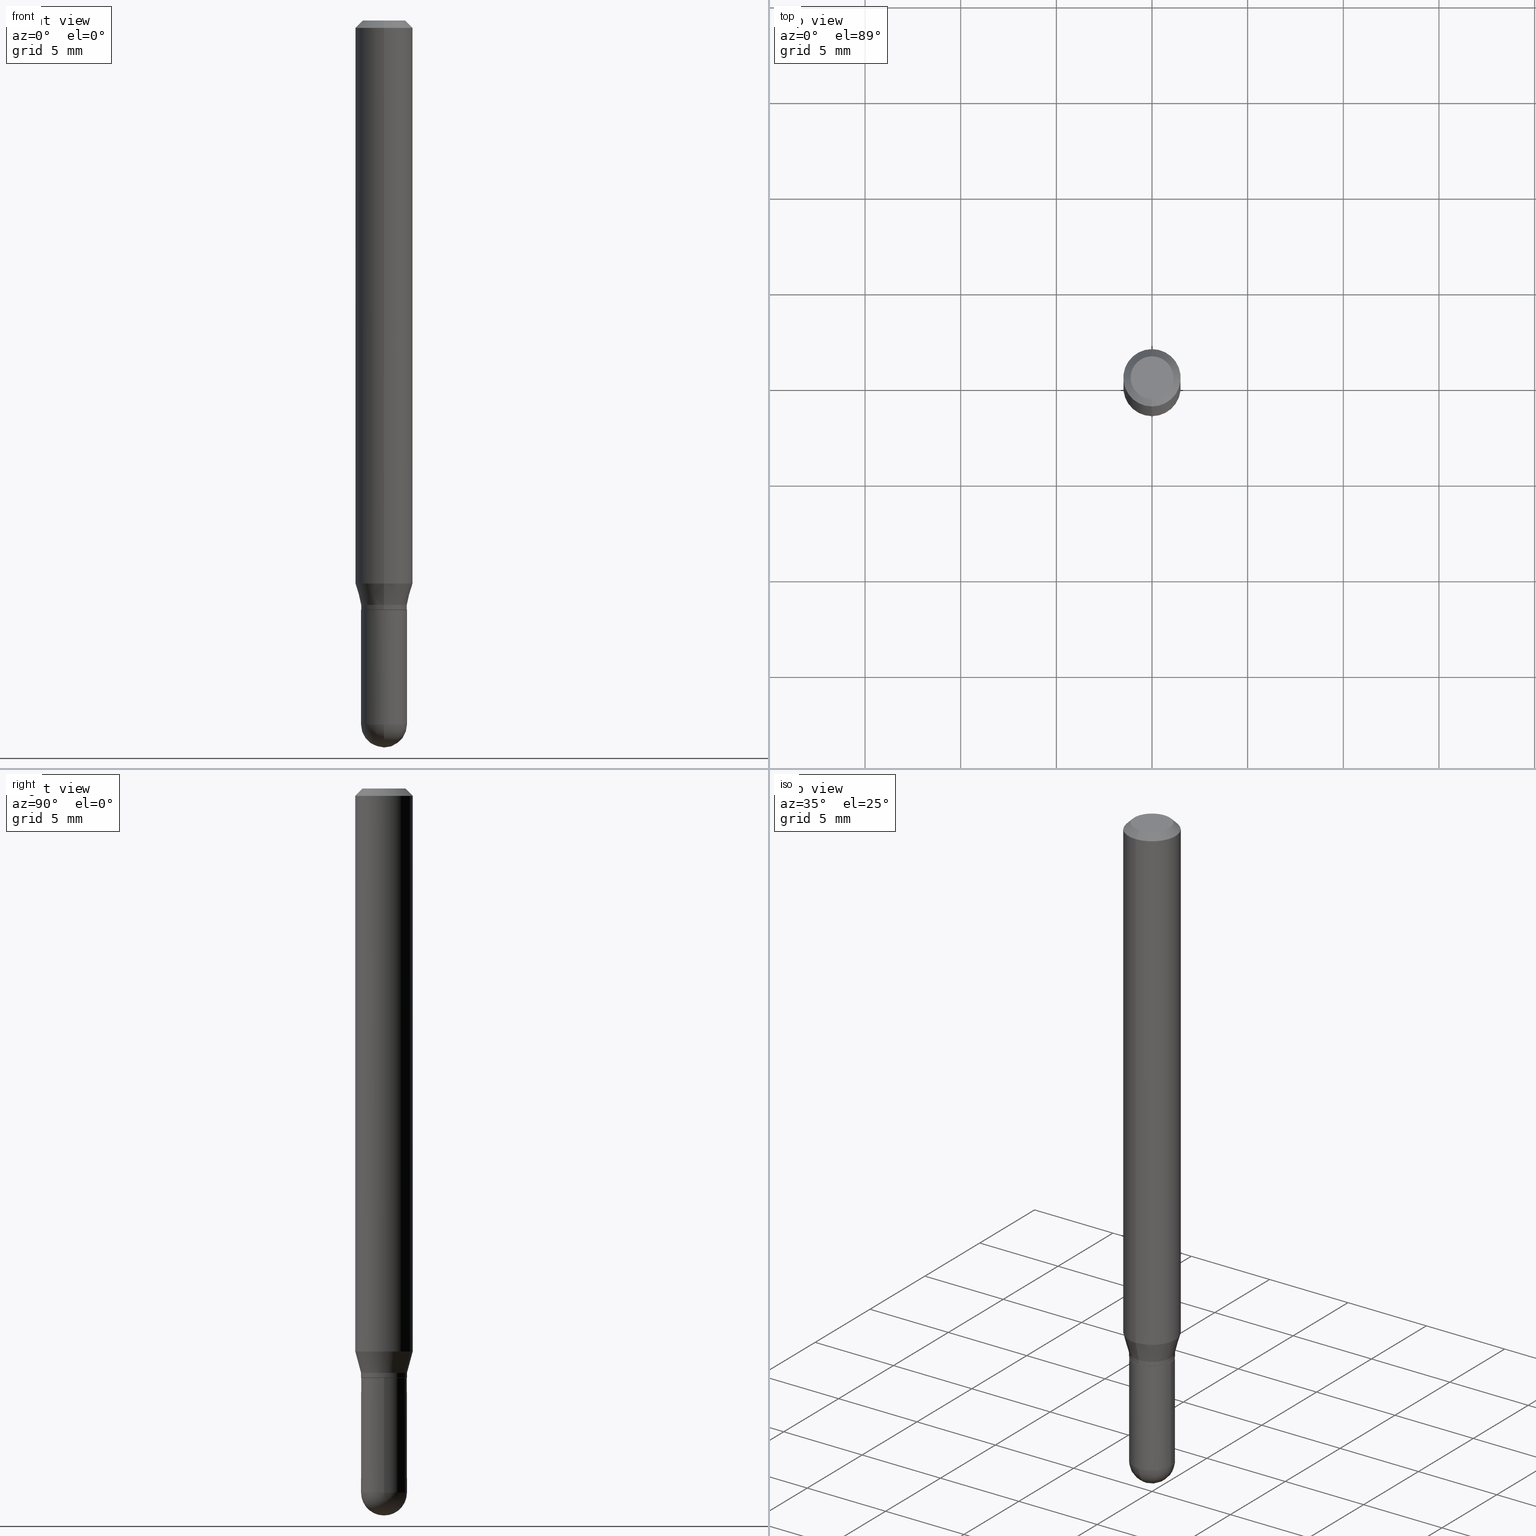
[diagram: canonical four-view strip — front | top / right | iso, engineering-drawing reading convention]
A machine part, canonical four-view strip (front | top / right | iso — engineering-drawing reading convention). The complete STEP part file that produces these views, byte-faithful:
ISO-10303-21;
HEADER;
FILE_DESCRIPTION (( 'STEP AP203' ),
    '1' );
FILE_NAME ('02973.STEP',
    '2024-03-07T22:13:24',
    ( '' ),
    ( '' ),
    'SwSTEP 2.0',
    'SolidWorks 2023',
    '' );
FILE_SCHEMA (( 'CONFIG_CONTROL_DESIGN' ));
ENDSEC;

DATA;
#1 = FACE_OUTER_BOUND ( 'NONE', #512, .T. ) ;
#2 = AXIS2_PLACEMENT_3D ( 'NONE', #131, #375, #56 ) ;
#3 = SECURITY_CLASSIFICATION ( '', '', #100 ) ;
#4 = EDGE_LOOP ( 'NONE', ( #207, #232, #391, #118 ) ) ;
#5 = EDGE_LOOP ( 'NONE', ( #82, #492, #133, #284 ) ) ;
#6 = CARTESIAN_POINT ( 'NONE',  ( -3.299449865206764511E-16, -0.04725000000000005584, 1.649753630756329783E-16 ) ) ;
#7 = CARTESIAN_POINT ( 'NONE',  ( 2.940869781282851862E-29, -4.198928500206475713E-15, -1.202599999999999891 ) ) ;
#8 = CARTESIAN_POINT ( 'NONE',  ( 3.543117479841335070E-29, -5.058632737782891656E-15, -1.448849999999999971 ) ) ;
#9 = DIRECTION ( 'NONE',  ( -2.445426393882298514E-29, 3.491542075674767907E-15, 1.000000000000000000 ) ) ;
#10 = DIRECTION ( 'NONE',  ( -2.445426393882298514E-29, 3.491542075674767907E-15, 1.000000000000000000 ) ) ;
#11 = FACE_OUTER_BOUND ( 'NONE', #173, .T. ) ;
#12 = AXIS2_PLACEMENT_3D ( 'NONE', #488, #248, #29 ) ;
#13 = AXIS2_PLACEMENT_3D ( 'NONE', #255, #416, #14 ) ;
#14 = DIRECTION ( 'NONE',  ( -6.982962677686266711E-15, -1.000000000000000000, 2.921762560068730989E-15 ) ) ;
#15 = ORIENTED_EDGE ( 'NONE', *, *, #374, .F. ) ;
#16 = CC_DESIGN_PERSON_AND_ORGANIZATION_ASSIGNMENT ( #500, #345, ( #24 ) ) ;
#17 = EDGE_CURVE ( 'NONE', #241, #247, #144, .T. ) ;
#18 = LENGTH_MEASURE_WITH_UNIT ( LENGTH_MEASURE( 0.02539999999999999897 ), #258 );
#19 = VERTEX_POINT ( 'NONE', #501 ) ;
#20 = CARTESIAN_POINT ( 'NONE',  ( 3.357314426466771690E-16, 0.04724999999999579536, -1.212099999999999955 ) ) ;
#21 = DIRECTION ( 'NONE',  ( -6.982962677686266711E-15, -1.000000000000000000, 5.781688875479930044E-15 ) ) ;
#22 = DIRECTION ( 'NONE',  ( -6.982962677686265922E-15, -1.000000000000000000, 3.491542075674767907E-15 ) ) ;
#23 = CIRCLE ( 'NONE', #506, 0.04404999999999999888 ) ;
#24 = PRODUCT_DEFINITION_FORMATION_WITH_SPECIFIED_SOURCE ( 'ANY', '', #165, .NOT_KNOWN. ) ;
#25 = CALENDAR_DATE ( 2024, 7, 3 ) ;
#26 = APPROVAL_DATE_TIME ( #304, #200 ) ;
#27 = ORIENTED_EDGE ( 'NONE', *, *, #196, .F. ) ;
#28 = CARTESIAN_POINT ( 'NONE',  ( 2.833177605814816812E-29, -4.045167273612921332E-15, -1.158561800470687464 ) ) ;
#29 = DIRECTION ( 'NONE',  ( 1.000000000000000000, -6.982962677686266711E-15, 4.876176775795935793E-29 ) ) ;
#30 = APPROVAL_DATE_TIME ( #142, #394 ) ;
#31 = CIRCLE ( 'NONE', #208, 0.04724999999999998646 ) ;
#32 = CARTESIAN_POINT ( 'NONE',  ( 2.241530102612863400E-45, -3.200422096834981095E-31, -9.166213745874662169E-17 ) ) ;
#33 = EDGE_CURVE ( 'NONE', #278, #147, #214, .T. ) ;
#34 = LINE ( 'NONE', #198, #58 ) ;
#35 = AXIS2_PLACEMENT_3D ( 'NONE', #8, #171, #333 ) ;
#36 = CARTESIAN_POINT ( 'NONE',  ( 4.195754854663390985E-16, 0.05904999999999999832, -2.061755595685950355E-16 ) ) ;
#37 = COORDINATED_UNIVERSAL_TIME_OFFSET ( 5, 0, .BEHIND. ) ;
#38 = ORIENTED_EDGE ( 'NONE', *, *, #253, .F. ) ;
#39 = CARTESIAN_POINT ( 'NONE',  ( -3.299449865206470168E-16, -0.04725000000000431633, -1.212099999999999733 ) ) ;
#40 = DIRECTION ( 'NONE',  ( -2.445426393882298514E-29, 3.491542075674767907E-15, 1.000000000000000000 ) ) ;
#41 = VERTEX_POINT ( 'NONE', #274 ) ;
#42 = DIRECTION ( 'NONE',  ( -2.445426393882298514E-29, 3.491542075674767907E-15, 1.000000000000000000 ) ) ;
#43 = ORIENTED_EDGE ( 'NONE', *, *, #510, .T. ) ;
#44 = CIRCLE ( 'NONE', #227, 0.05904999999999999832 ) ;
#45 = FACE_OUTER_BOUND ( 'NONE', #243, .T. ) ;
#46 = EDGE_LOOP ( 'NONE', ( #270, #300 ) ) ;
#47 = ORIENTED_EDGE ( 'NONE', *, *, #314, .F. ) ;
#48 = DIRECTION ( 'NONE',  ( -2.445426393882298514E-29, 3.491542075674767907E-15, 1.000000000000000000 ) ) ;
#49 = DIRECTION ( 'NONE',  ( -6.982962677686265922E-15, -1.000000000000000000, 2.890844437739957528E-15 ) ) ;
#50 = CARTESIAN_POINT ( 'NONE',  ( 4.123439461173743285E-16, 0.05904999999999994975, -0.01500000000000029955 ) ) ;
#51 = FACE_OUTER_BOUND ( 'NONE', #312, .T. ) ;
#52 = CYLINDRICAL_SURFACE ( 'NONE', #187, 0.05904999999999999832 ) ;
#53 = EDGE_CURVE ( 'NONE', #41, #19, #55, .T. ) ;
#54 = FACE_OUTER_BOUND ( 'NONE', #282, .T. ) ;
#55 = CIRCLE ( 'NONE', #411, 0.04725000000000005584 ) ;
#56 = DIRECTION ( 'NONE',  ( -6.982962677686265922E-15, -1.000000000000000000, 2.890844437739957528E-15 ) ) ;
#57 = DIRECTION ( 'NONE',  ( -4.937700262164674260E-15, -0.7071067811865632269, 0.7071067811865319186 ) ) ;
#58 = VECTOR ( 'NONE', #112, 39.37007874015748143 ) ;
#59 = VECTOR ( 'NONE', #79, 39.37007874015748143 ) ;
#60 = DATE_TIME_ROLE ( 'classification_date' ) ;
#61 = EDGE_CURVE ( 'NONE', #406, #278, #93, .T. ) ;
#62 = PERSON_AND_ORGANIZATION_ROLE ( 'design_owner' ) ;
#63 = PRODUCT_DEFINITION_SHAPE ( 'NONE', 'NONE',  #240 ) ;
#64 = ORIENTED_EDGE ( 'NONE', *, *, #53, .F. ) ;
#65 = DIRECTION ( 'NONE',  ( -2.445468806185136597E-29, 3.491481338843145583E-15, 1.000000000000000000 ) ) ;
#66 = CC_DESIGN_PERSON_AND_ORGANIZATION_ASSIGNMENT ( #423, #504, ( #3 ) ) ;
#67 = EDGE_CURVE ( 'NONE', #78, #137, #436, .T. ) ;
#68 = CONICAL_SURFACE ( 'NONE', #472, 0.04674999999999999295, 0.7853981633974739252 ) ;
#69 = DIRECTION ( 'NONE',  ( 6.982962677686265922E-15, 1.000000000000000000, -3.505890868245046092E-15 ) ) ;
#70 = CARTESIAN_POINT ( 'NONE',  ( 3.668139590823469947E-31, -5.237313113512184524E-17, -0.01500000000000009139 ) ) ;
#71 = VERTEX_POINT ( 'NONE', #188 ) ;
#72 = ADVANCED_FACE ( 'NONE', ( #257 ), #52, .T. ) ;
#73 = CLOSED_SHELL ( 'NONE', ( #109, #103, #427, #468, #265 ) ) ;
#74 = ADVANCED_FACE ( 'NONE', ( #11 ), #68, .T. ) ;
#75 = DIRECTION ( 'NONE',  ( -2.445426393882298514E-29, 3.491542075674767907E-15, 1.000000000000000000 ) ) ;
#76 = AXIS2_PLACEMENT_3D ( 'NONE', #141, #428, #69 ) ;
#77 = AXIS2_PLACEMENT_3D ( 'NONE', #128, #294, #369 ) ;
#78 = VERTEX_POINT ( 'NONE', #20 ) ;
#79 = DIRECTION ( 'NONE',  ( -2.445426393882298514E-29, 3.491542075674767907E-15, 1.000000000000000000 ) ) ;
#80 = CARTESIAN_POINT ( 'NONE',  ( 0.000000000000000000, 0.000000000000000000, 0.000000000000000000 ) ) ;
#81 = CARTESIAN_POINT ( 'NONE',  ( 3.539076819124962473E-29, -5.064419193908863088E-15, -1.448849999999999971 ) ) ;
#82 = ORIENTED_EDGE ( 'NONE', *, *, #320, .T. ) ;
#83 = EDGE_CURVE ( 'NONE', #252, #71, #401, .T. ) ;
#84 = EDGE_CURVE ( 'NONE', #370, #247, #317, .T. ) ;
#85 = CARTESIAN_POINT ( 'NONE',  ( -4.123439461173456337E-16, -0.05905000000000405758, -1.158561800470687464 ) ) ;
#86 = SPHERICAL_SURFACE ( 'NONE', #97, 0.04724999999999993788 ) ;
#87 = VECTOR ( 'NONE', #456, 39.37007874015748143 ) ;
#88 = ORIENTED_EDGE ( 'NONE', *, *, #442, .T. ) ;
#89 = CYLINDRICAL_SURFACE ( 'NONE', #496, 0.04725000000000005584 ) ;
#90 = PLANE ( 'NONE',  #113 ) ;
#91 = CARTESIAN_POINT ( 'NONE',  ( 3.543117479841335070E-29, -5.058632737782891656E-15, -1.448849999999999971 ) ) ;
#92 = EDGE_CURVE ( 'NONE', #370, #252, #454, .T. ) ;
#93 = LINE ( 'NONE', #222, #267 ) ;
#94 = DIRECTION ( 'NONE',  ( 1.000000000000000000, 0.000000000000000000, 0.000000000000000000 ) ) ;
#95 = DIRECTION ( 'NONE',  ( -2.445426393882298514E-29, 3.491542075674767907E-15, 1.000000000000000000 ) ) ;
#96 = AXIS2_PLACEMENT_3D ( 'NONE', #98, #262, #21 ) ;
#97 = AXIS2_PLACEMENT_3D ( 'NONE', #81, #117, #245 ) ;
#98 = CARTESIAN_POINT ( 'NONE',  ( 3.539076819124962473E-29, -5.064419193908863088E-15, -1.448849999999999971 ) ) ;
#99 = ORIENTED_EDGE ( 'NONE', *, *, #314, .T. ) ;
#100 = SECURITY_CLASSIFICATION_LEVEL ( 'unclassified' ) ;
#101 = CARTESIAN_POINT ( 'NONE',  ( 2.940869781282851862E-29, -4.198928500206475713E-15, -1.202599999999999891 ) ) ;
#102 = CARTESIAN_POINT ( 'NONE',  ( -3.299449865206404101E-16, -0.04725000000000502409, -1.448849999999999749 ) ) ;
#103 = ADVANCED_FACE ( 'NONE', ( #251 ), #379, .T. ) ;
#104 = COORDINATED_UNIVERSAL_TIME_OFFSET ( 5, 0, .BEHIND. ) ;
#105 = ORIENTED_EDGE ( 'NONE', *, *, #172, .F. ) ;
#106 = CIRCLE ( 'NONE', #293, 0.04724999999999998646 ) ;
#107 = APPLICATION_PROTOCOL_DEFINITION ( 'international standard', 'config_control_design', 1994, #398 ) ;
#108 = DIRECTION ( 'NONE',  ( -6.982962677686265922E-15, -1.000000000000000000, 4.626330217890369336E-15 ) ) ;
#109 = ADVANCED_FACE ( 'NONE', ( #184 ), #286, .T. ) ;
#110 = DIRECTION ( 'NONE',  ( -2.445426393882298514E-29, 3.491542075674767907E-15, 1.000000000000000000 ) ) ;
#111 = ADVANCED_FACE ( 'NONE', ( #463 ), #469, .T. ) ;
#112 = DIRECTION ( 'NONE',  ( 5.024295867788190974E-15, 0.7071067811865681119, 0.7071067811865270336 ) ) ;
#113 = AXIS2_PLACEMENT_3D ( 'NONE', #337, #168, #283 ) ;
#114 = CARTESIAN_POINT ( 'NONE',  ( -3.264535051818032208E-16, -0.04675000000000423261, -1.212599999999999900 ) ) ;
#115 = VECTOR ( 'NONE', #446, 39.37007874015748143 ) ;
#116 = ORGANIZATION ( 'UNSPECIFIED', 'UNSPECIFIED', '' ) ;
#117 = DIRECTION ( 'NONE',  ( 1.000000000000000000, -6.982962677686266711E-15, 4.883557194083112901E-29 ) ) ;
#118 = ORIENTED_EDGE ( 'NONE', *, *, #289, .F. ) ;
#119 = CC_DESIGN_PERSON_AND_ORGANIZATION_ASSIGNMENT ( #269, #62, ( #165 ) ) ;
#120 = DIRECTION ( 'NONE',  ( -6.982962677686266711E-15, -1.000000000000000000, 2.921762560068730989E-15 ) ) ;
#121 = ORIENTED_EDGE ( 'NONE', *, *, #17, .F. ) ;
#122 = EDGE_CURVE ( 'NONE', #160, #137, #355, .T. ) ;
#123 = CARTESIAN_POINT ( 'NONE',  ( 3.357314426466476853E-16, 0.04725000000000005584, -1.649753630756329783E-16 ) ) ;
#124 = DIRECTION ( 'NONE',  ( -2.445468806185136597E-29, 3.491481338843145583E-15, 1.000000000000000000 ) ) ;
#125 = DIRECTION ( 'NONE',  ( 1.000000000000000000, -7.105427357601001070E-15, 4.926315508542082329E-29 ) ) ;
#126 = LINE ( 'NONE', #50, #139 ) ;
#127 = DIRECTION ( 'NONE',  ( 2.445426393882298514E-29, -3.491542075674767907E-15, -1.000000000000000000 ) ) ;
#128 = CARTESIAN_POINT ( 'NONE',  ( 0.000000000000000000, 0.000000000000000000, 0.000000000000000000 ) ) ;
#129 = CIRCLE ( 'NONE', #161, 0.04674999999999999295 ) ;
#130 = APPROVAL_PERSON_ORGANIZATION ( #393, #394, #350 ) ;
#131 = CARTESIAN_POINT ( 'NONE',  ( 2.964101332024733501E-29, -4.232098149925386200E-15, -1.212099999999999955 ) ) ;
#132 = ADVANCED_FACE ( 'NONE', ( #499 ), #230, .F. ) ;
#133 = ORIENTED_EDGE ( 'NONE', *, *, #33, .F. ) ;
#134 = FACE_OUTER_BOUND ( 'NONE', #158, .T. ) ;
#135 = DIRECTION ( 'NONE',  ( -2.445426393882298514E-29, 3.491542075674767907E-15, 1.000000000000000000 ) ) ;
#136 = DIRECTION ( 'NONE',  ( 1.000000000000000000, -6.982962677686256455E-15, 0.000000000000000000 ) ) ;
#137 = VERTEX_POINT ( 'NONE', #39 ) ;
#138 = PERSON_AND_ORGANIZATION_ROLE ( 'creator' ) ;
#139 = VECTOR ( 'NONE', #290, 39.37007874015748143 ) ;
#140 = ORIENTED_EDGE ( 'NONE', *, *, #122, .F. ) ;
#141 = CARTESIAN_POINT ( 'NONE',  ( 3.668139590823469947E-31, -5.237313113512184524E-17, -0.01500000000000009139 ) ) ;
#142 = DATE_AND_TIME ( #193, #426 ) ;
#143 = APPROVAL ( #390, 'UNSPECIFIED' ) ;
#144 = CIRCLE ( 'NONE', #432, 0.04724999999999993788 ) ;
#145 = APPROVAL_STATUS ( 'not_yet_approved' ) ;
#146 = COORDINATED_UNIVERSAL_TIME_OFFSET ( 5, 0, .BEHIND. ) ;
#147 = VERTEX_POINT ( 'NONE', #249 ) ;
#148 = AXIS2_PLACEMENT_3D ( 'NONE', #192, #351, #311 ) ;
#149 = LOCAL_TIME ( 17, 13, 24.00000000000000000, #146 ) ;
#150 = EDGE_CURVE ( 'NONE', #205, #71, #483, .T. ) ;
#151 = DIRECTION ( 'NONE',  ( -6.982962677686265922E-15, -1.000000000000000000, 2.890844437739957528E-15 ) ) ;
#152 = ORIENTED_EDGE ( 'NONE', *, *, #451, .T. ) ;
#153 = VECTOR ( 'NONE', #210, 39.37007874015748143 ) ;
#154 = CIRCLE ( 'NONE', #162, 0.04724999999999993788 ) ;
#155 = CARTESIAN_POINT ( 'NONE',  ( 3.357314426466824445E-16, 0.04724999999999490025, -1.448850000000000415 ) ) ;
#156 = ADVANCED_FACE ( 'NONE', ( #368 ), #176, .T. ) ;
#157 = CARTESIAN_POINT ( 'NONE',  ( 3.599717260347271507E-16, 0.04404999999999999888, -2.454645658922201879E-16 ) ) ;
#158 = EDGE_LOOP ( 'NONE', ( #105, #216, #43, #364 ) ) ;
#159 = CC_DESIGN_PERSON_AND_ORGANIZATION_ASSIGNMENT ( #306, #263, ( #24 ) ) ;
#160 = VERTEX_POINT ( 'NONE', #114 ) ;
#161 = AXIS2_PLACEMENT_3D ( 'NONE', #264, #342, #437 ) ;
#162 = AXIS2_PLACEMENT_3D ( 'NONE', #444, #219, #414 ) ;
#163 = DIRECTION ( 'NONE',  ( -6.982962677686265922E-15, -1.000000000000000000, 3.491542075674767907E-15 ) ) ;
#164 = ORIENTED_EDGE ( 'NONE', *, *, #442, .F. ) ;
#165 = PRODUCT ( '02973', '02973', '', ( #302 ) ) ;
#166 = ORIENTED_EDGE ( 'NONE', *, *, #338, .T. ) ;
#167 = EDGE_LOOP ( 'NONE', ( #179, #38, #99, #166 ) ) ;
#168 = DIRECTION ( 'NONE',  ( 2.438088387897960049E-29, -3.491481338843145188E-15, -1.000000000000000000 ) ) ;
#169 = ORIENTED_EDGE ( 'NONE', *, *, #83, .F. ) ;
#170 = EDGE_LOOP ( 'NONE', ( #329, #281, #343, #64 ) ) ;
#171 = DIRECTION ( 'NONE',  ( -2.445468806185136597E-29, 3.491481338843145583E-15, 1.000000000000000000 ) ) ;
#172 = EDGE_CURVE ( 'NONE', #448, #147, #326, .T. ) ;
#173 = EDGE_LOOP ( 'NONE', ( #477, #471, #285, #140 ) ) ;
#174 = DIRECTION ( 'NONE',  ( -2.445468806185136597E-29, 3.491481338843145583E-15, 1.000000000000000000 ) ) ;
#175 = LINE ( 'NONE', #407, #507 ) ;
#176 = CONICAL_SURFACE ( 'NONE', #309, 0.05904999999999999832, 0.7853981633974483900 ) ;
#177 = DIRECTION ( 'NONE',  ( -6.982962677686265922E-15, -1.000000000000000000, 2.890844437739957528E-15 ) ) ;
#178 = FACE_OUTER_BOUND ( 'NONE', #170, .T. ) ;
#179 = ORIENTED_EDGE ( 'NONE', *, *, #61, .F. ) ;
#180 = EDGE_LOOP ( 'NONE', ( #152, #408, #15, #466 ) ) ;
#181 = DIRECTION ( 'NONE',  ( -6.982962677686265133E-15, -1.000000000000000000, 3.491542075674767907E-15 ) ) ;
#182 = ORIENTED_EDGE ( 'NONE', *, *, #186, .F. ) ;
#183 = EDGE_CURVE ( 'NONE', #406, #291, #23, .T. ) ;
#184 = FACE_OUTER_BOUND ( 'NONE', #461, .T. ) ;
#185 = APPLICATION_PROTOCOL_DEFINITION ( 'international standard', 'config_control_design', 1994, #299 ) ;
#186 = EDGE_CURVE ( 'NONE', #205, #288, #449, .T. ) ;
#187 = AXIS2_PLACEMENT_3D ( 'NONE', #261, #348, #383 ) ;
#188 = CARTESIAN_POINT ( 'NONE',  ( -0.04724999999999999339, -4.310470061985398025E-15, -1.212599999999999900 ) ) ;
#189 = DATE_AND_TIME ( #25, #229 ) ;
#190 = APPROVAL_STATUS ( 'not_yet_approved' ) ;
#191 = ORIENTED_EDGE ( 'NONE', *, *, #84, .F. ) ;
#192 = CARTESIAN_POINT ( 'NONE',  ( 3.075995059520799729E-16, 0.04404999999999999888, -1.996334971628468278E-16 ) ) ;
#193 = CALENDAR_DATE ( 2024, 7, 3 ) ;
#194 = UNCERTAINTY_MEASURE_WITH_UNIT (LENGTH_MEASURE( 1.000000000000000082E-05 ), #233, 'distance_accuracy_value', 'NONE');
#195 = CIRCLE ( 'NONE', #303, 0.05904999999999999832 ) ;
#196 = EDGE_CURVE ( 'NONE', #71, #252, #279, .T. ) ;
#197 = CIRCLE ( 'NONE', #335, 0.04404999999999999888 ) ;
#198 = CARTESIAN_POINT ( 'NONE',  ( 3.321787289678764184E-16, 0.04674999999999576022, -1.212600000000000122 ) ) ;
#199 = DIRECTION ( 'NONE',  ( -6.982962677686265133E-15, -1.000000000000000000, 3.491542075674767907E-15 ) ) ;
#200 = APPROVAL ( #190, 'UNSPECIFIED' ) ;
#201 = EDGE_CURVE ( 'NONE', #441, #78, #34, .T. ) ;
#202 = ORIENTED_EDGE ( 'NONE', *, *, #354, .F. ) ;
#203 = ORIENTED_EDGE ( 'NONE', *, *, #358, .T. ) ;
#204 = DIRECTION ( 'NONE',  ( -2.445426393882298514E-29, 3.491542075674767907E-15, 1.000000000000000000 ) ) ;
#205 = VERTEX_POINT ( 'NONE', #360 ) ;
#206 = DIRECTION ( 'NONE',  ( -2.445468806185136597E-29, 3.491481338843145583E-15, 1.000000000000000000 ) ) ;
#207 = ORIENTED_EDGE ( 'NONE', *, *, #223, .F. ) ;
#208 = AXIS2_PLACEMENT_3D ( 'NONE', #91, #327, #484 ) ;
#209 = DIRECTION ( 'NONE',  ( 1.000000000000000000, -6.982962677686266711E-15, 4.876176775795935793E-29 ) ) ;
#210 = DIRECTION ( 'NONE',  ( -2.445468806185136877E-29, 3.491481338843145188E-15, 1.000000000000000000 ) ) ;
#211 = CARTESIAN_POINT ( 'NONE',  ( 2.965324045221675082E-29, -4.233843920963223096E-15, -1.212599999999999900 ) ) ;
#212 = EDGE_LOOP ( 'NONE', ( #164, #361, #191, #384 ) ) ;
#213 = FACE_OUTER_BOUND ( 'NONE', #180, .T. ) ;
#214 = CIRCLE ( 'NONE', #225, 0.05904999999999999832 ) ;
#215 = DIRECTION ( 'NONE',  ( -6.982962677686265922E-15, -1.000000000000000000, 3.491542075674767907E-15 ) ) ;
#216 = ORIENTED_EDGE ( 'NONE', *, *, #289, .T. ) ;
#217 = FACE_OUTER_BOUND ( 'NONE', #367, .T. ) ;
#218 = CARTESIAN_POINT ( 'NONE',  ( 2.940869781282851862E-29, -4.198928500206475713E-15, -1.202599999999999891 ) ) ;
#219 = DIRECTION ( 'NONE',  ( -1.000000000000000000, 6.982962677686265922E-15, -4.883557194083112340E-29 ) ) ;
#220 = CARTESIAN_POINT ( 'NONE',  ( 2.833177605814816812E-29, -4.045167273612921332E-15, -1.158561800470687464 ) ) ;
#221 = PERSON_AND_ORGANIZATION ( #318, #116 ) ;
#222 = CARTESIAN_POINT ( 'NONE',  ( -4.051124067684085231E-16, -0.05905000000000005383, -0.01499999999999988495 ) ) ;
#223 = EDGE_CURVE ( 'NONE', #41, #448, #271, .T. ) ;
#224 = COORDINATED_UNIVERSAL_TIME_OFFSET ( 5, 0, .BEHIND. ) ;
#225 = AXIS2_PLACEMENT_3D ( 'NONE', #70, #505, #319 ) ;
#226 = ORIENTED_EDGE ( 'NONE', *, *, #183, .F. ) ;
#227 = AXIS2_PLACEMENT_3D ( 'NONE', #28, #234, #108 ) ;
#228 = DIRECTION ( 'NONE',  ( 7.105427357601001070E-15, 1.000000000000000000, 0.000000000000000000 ) ) ;
#229 = LOCAL_TIME ( 17, 13, 24.00000000000000000, #104 ) ;
#230 = PLANE ( 'NONE',  #148 ) ;
#231 = DIRECTION ( 'NONE',  ( 0.000000000000000000, 0.000000000000000000, 1.000000000000000000 ) ) ;
#232 = ORIENTED_EDGE ( 'NONE', *, *, #53, .T. ) ;
#233 =( CONVERSION_BASED_UNIT ( 'INCH', #18 ) LENGTH_UNIT ( ) NAMED_UNIT ( #301 ) );
#234 = DIRECTION ( 'NONE',  ( -2.445426393882298514E-29, 3.491542075674767907E-15, 1.000000000000000000 ) ) ;
#235 = AXIS2_PLACEMENT_3D ( 'NONE', #380, #40, #163 ) ;
#236 = AXIS2_PLACEMENT_3D ( 'NONE', #497, #231, #94 ) ;
#237 = CARTESIAN_POINT ( 'NONE',  ( 3.357314426466771197E-16, 0.04724999999999585781, -1.202600000000000113 ) ) ;
#238 = AXIS2_PLACEMENT_3D ( 'NONE', #80, #174, #209 ) ;
#239 = AXIS2_PLACEMENT_3D ( 'NONE', #211, #295, #120 ) ;
#240 = PRODUCT_DEFINITION ( 'UNKNOWN', '', #24, #340 ) ;
#241 = VERTEX_POINT ( 'NONE', #509 ) ;
#242 = DIRECTION ( 'NONE',  ( -2.445426393882298234E-29, 3.491542075674767907E-15, 1.000000000000000000 ) ) ;
#243 = EDGE_LOOP ( 'NONE', ( #431, #321, #275, #202 ) ) ;
#244 = CARTESIAN_POINT ( 'NONE',  ( -0.04724999999999998646, 3.357314426466472416E-16, -2.324196830145442465E-30 ) ) ;
#245 = DIRECTION ( 'NONE',  ( -6.982962677686266711E-15, -1.000000000000000000, 5.781688875479930044E-15 ) ) ;
#246 = APPROVAL_DATE_TIME ( #397, #143 ) ;
#247 = VERTEX_POINT ( 'NONE', #155 ) ;
#248 = DIRECTION ( 'NONE',  ( -2.445468806185136597E-29, 3.491481338843145583E-15, 1.000000000000000000 ) ) ;
#249 = CARTESIAN_POINT ( 'NONE',  ( 4.195754854663675961E-16, 0.05904999999999994281, -0.01500000000000029955 ) ) ;
#250 = CARTESIAN_POINT ( 'NONE',  ( 2.965324045221675082E-29, -4.233843920963223096E-15, -1.212599999999999900 ) ) ;
#251 = FACE_OUTER_BOUND ( 'NONE', #212, .T. ) ;
#252 = VERTEX_POINT ( 'NONE', #473 ) ;
#253 = EDGE_CURVE ( 'NONE', #291, #406, #197, .T. ) ;
#254 = CARTESIAN_POINT ( 'NONE',  ( 0.000000000000000000, 0.000000000000000000, 0.000000000000000000 ) ) ;
#255 = CARTESIAN_POINT ( 'NONE',  ( 2.965324045221675082E-29, -4.233843920963223096E-15, -1.212599999999999900 ) ) ;
#256 = CARTESIAN_POINT ( 'NONE',  ( 0.04724999999999998646, -4.976146491152720682E-15, -1.448849999999999971 ) ) ;
#257 = FACE_OUTER_BOUND ( 'NONE', #5, .T. ) ;
#258 =( LENGTH_UNIT ( ) NAMED_UNIT ( * ) SI_UNIT ( $, .METRE. ) );
#259 = CC_DESIGN_PERSON_AND_ORGANIZATION_ASSIGNMENT ( #221, #138, ( #240 ) ) ;
#260 = AXIS2_PLACEMENT_3D ( 'NONE', #101, #9, #151 ) ;
#261 = CARTESIAN_POINT ( 'NONE',  ( 0.000000000000000000, 0.000000000000000000, 0.000000000000000000 ) ) ;
#262 = DIRECTION ( 'NONE',  ( 1.000000000000000000, -6.982962677686266711E-15, 4.883557194083112901E-29 ) ) ;
#263 = PERSON_AND_ORGANIZATION_ROLE ( 'design_supplier' ) ;
#264 = CARTESIAN_POINT ( 'NONE',  ( 2.965324045221675082E-29, -4.233843920963223096E-15, -1.212599999999999900 ) ) ;
#265 = ADVANCED_FACE ( 'NONE', ( #54 ), #493, .T. ) ;
#266 = DATE_AND_TIME ( #467, #438 ) ;
#267 = VECTOR ( 'NONE', #386, 39.37007874015748143 ) ;
#268 = LOCAL_TIME ( 17, 13, 24.00000000000000000, #37 ) ;
#269 = PERSON_AND_ORGANIZATION ( #318, #116 ) ;
#270 = ORIENTED_EDGE ( 'NONE', *, *, #253, .T. ) ;
#271 = LINE ( 'NONE', #237, #273 ) ;
#272 = EDGE_CURVE ( 'NONE', #78, #41, #479, .T. ) ;
#273 = VECTOR ( 'NONE', #396, 39.37007874015748854 ) ;
#274 = CARTESIAN_POINT ( 'NONE',  ( 3.776534640565222593E-16, 0.04724999999999585781, -1.202600000000000113 ) ) ;
#275 = ORIENTED_EDGE ( 'NONE', *, *, #320, .F. ) ;
#276 = ADVANCED_FACE ( 'NONE', ( #213 ), #89, .T. ) ;
#277 = CARTESIAN_POINT ( 'NONE',  ( 2.241530102612863400E-45, -3.200422096834981095E-31, -9.166213745874662169E-17 ) ) ;
#278 = VERTEX_POINT ( 'NONE', #465 ) ;
#279 = CIRCLE ( 'NONE', #429, 0.04724999999999999339 ) ;
#280 = CARTESIAN_POINT ( 'NONE',  ( -3.299449865206470168E-16, -0.04725000000000425388, -1.202599999999999669 ) ) ;
#281 = ORIENTED_EDGE ( 'NONE', *, *, #67, .T. ) ;
#282 = EDGE_LOOP ( 'NONE', ( #490, #382, #363, #413, #27 ) ) ;
#283 = DIRECTION ( 'NONE',  ( -1.000000000000000000, 6.982962677686265922E-15, -4.876176775795935793E-29 ) ) ;
#284 = ORIENTED_EDGE ( 'NONE', *, *, #510, .F. ) ;
#285 = ORIENTED_EDGE ( 'NONE', *, *, #451, .F. ) ;
#286 = CYLINDRICAL_SURFACE ( 'NONE', #12, 0.04724999999999998646 ) ;
#287 = PLANE ( 'NONE',  #457 ) ;
#288 = VERTEX_POINT ( 'NONE', #102 ) ;
#289 = EDGE_CURVE ( 'NONE', #448, #330, #44, .T. ) ;
#290 = DIRECTION ( 'NONE',  ( 4.937700262164548042E-15, 0.7071067811865451302, -0.7071067811865499042 ) ) ;
#291 = VERTEX_POINT ( 'NONE', #157 ) ;
#292 = VECTOR ( 'NONE', #57, 39.37007874015748143 ) ;
#293 = AXIS2_PLACEMENT_3D ( 'NONE', #331, #124, #419 ) ;
#294 = DIRECTION ( 'NONE',  ( -2.445426393882298514E-29, 3.491542075674767907E-15, 1.000000000000000000 ) ) ;
#295 = DIRECTION ( 'NONE',  ( -2.445426393882298514E-29, 3.491542075674767907E-15, 1.000000000000000000 ) ) ;
#296 = DIRECTION ( 'NONE',  ( -6.982962677686266711E-15, -1.000000000000000000, 2.921762560068730989E-15 ) ) ;
#297 = CC_DESIGN_DATE_AND_TIME_ASSIGNMENT ( #189, #470, ( #240 ) ) ;
#298 = COORDINATED_UNIVERSAL_TIME_OFFSET ( 5, 0, .BEHIND. ) ;
#299 = APPLICATION_CONTEXT ( 'configuration controlled 3d designs of mechanical parts and assemblies' ) ;
#300 = ORIENTED_EDGE ( 'NONE', *, *, #183, .T. ) ;
#301 = DIMENSIONAL_EXPONENTS ( 1.000000000000000000, 0.000000000000000000, 0.000000000000000000, 0.000000000000000000, 0.000000000000000000, 0.000000000000000000, 0.000000000000000000 ) ;
#302 = MECHANICAL_CONTEXT ( 'NONE', #398, 'mechanical' ) ;
#303 = AXIS2_PLACEMENT_3D ( 'NONE', #439, #392, #389 ) ;
#304 = DATE_AND_TIME ( #458, #149 ) ;
#305 = CARTESIAN_POINT ( 'NONE',  ( -3.264535051818032208E-16, -0.04675000000000423261, -1.212599999999999900 ) ) ;
#306 = PERSON_AND_ORGANIZATION ( #318, #116 ) ;
#307 = PRODUCT_RELATED_PRODUCT_CATEGORY ( 'detail', '', ( #165 ) ) ;
#308 = APPROVAL_ROLE ( '' ) ;
#309 = AXIS2_PLACEMENT_3D ( 'NONE', #511, #127, #452 ) ;
#310 = AXIS2_PLACEMENT_3D ( 'NONE', #480, #10, #489 ) ;
#311 = DIRECTION ( 'NONE',  ( 6.982962677686265922E-15, 1.000000000000000000, -3.491542075674767907E-15 ) ) ;
#312 = EDGE_LOOP ( 'NONE', ( #404, #459 ) ) ;
#313 = MANIFOLD_SOLID_BREP ( 'Body-Move/Copy2[1]', #73 ) ;
#314 = EDGE_CURVE ( 'NONE', #291, #147, #126, .T. ) ;
#315 = ADVANCED_FACE ( 'NONE', ( #491 ), #352, .T. ) ;
#316 = EDGE_LOOP ( 'NONE', ( #121, #88, #182, #325 ) ) ;
#317 = CIRCLE ( 'NONE', #35, 0.04724999999999998646 ) ;
#318 = PERSON ( 'UNSPECIFIED', 'UNSPECIFIED', 'UNSPECIFIED', ('UNSPECIFIED'), ('UNSPECIFIED'), ('UNSPECIFIED') ) ;
#319 = DIRECTION ( 'NONE',  ( -6.982962677686265922E-15, -1.000000000000000000, 3.505890868245046092E-15 ) ) ;
#320 = EDGE_CURVE ( 'NONE', #330, #448, #420, .T. ) ;
#321 = ORIENTED_EDGE ( 'NONE', *, *, #223, .T. ) ;
#322 = AXIS2_PLACEMENT_3D ( 'NONE', #495, #341, #136 ) ;
#323 = AXIS2_PLACEMENT_3D ( 'NONE', #332, #42, #365 ) ;
#324 = ADVANCED_BREP_SHAPE_REPRESENTATION ( '02973', ( #313, #482, #236 ), #347 ) ;
#325 = ORIENTED_EDGE ( 'NONE', *, *, #358, .F. ) ;
#326 = LINE ( 'NONE', #36, #378 ) ;
#327 = DIRECTION ( 'NONE',  ( -2.445468806185136597E-29, 3.491481338843145583E-15, 1.000000000000000000 ) ) ;
#328 = ORIENTED_EDGE ( 'NONE', *, *, #61, .T. ) ;
#329 = ORIENTED_EDGE ( 'NONE', *, *, #272, .F. ) ;
#330 = VERTEX_POINT ( 'NONE', #85 ) ;
#331 = CARTESIAN_POINT ( 'NONE',  ( 3.543117479841335070E-29, -5.058632737782891656E-15, -1.448849999999999971 ) ) ;
#332 = CARTESIAN_POINT ( 'NONE',  ( 2.940869781282851862E-29, -4.198928500206475713E-15, -1.202599999999999891 ) ) ;
#333 = DIRECTION ( 'NONE',  ( 1.000000000000000000, -6.982962677686267499E-15, 0.000000000000000000 ) ) ;
#334 = ORIENTED_EDGE ( 'NONE', *, *, #353, .F. ) ;
#335 = AXIS2_PLACEMENT_3D ( 'NONE', #32, #110, #181 ) ;
#336 = CARTESIAN_POINT ( 'NONE',  ( 3.543117479841335070E-29, -5.058632737782891656E-15, -1.448849999999999971 ) ) ;
#337 = CARTESIAN_POINT ( 'NONE',  ( 3.299449865207056883E-16, 0.04724999999999576067, -1.212600000000000122 ) ) ;
#338 = EDGE_CURVE ( 'NONE', #147, #278, #195, .T. ) ;
#339 = FACE_OUTER_BOUND ( 'NONE', #316, .T. ) ;
#340 = DESIGN_CONTEXT ( 'detailed design', #299, 'design' ) ;
#341 = DIRECTION ( 'NONE',  ( -2.445468806185136597E-29, 3.491481338843145583E-15, 1.000000000000000000 ) ) ;
#342 = DIRECTION ( 'NONE',  ( -2.445426393882298514E-29, 3.491542075674767907E-15, 1.000000000000000000 ) ) ;
#343 = ORIENTED_EDGE ( 'NONE', *, *, #494, .T. ) ;
#344 = AXIS2_PLACEMENT_3D ( 'NONE', #7, #409, #49 ) ;
#345 = PERSON_AND_ORGANIZATION_ROLE ( 'creator' ) ;
#346 = CC_DESIGN_SECURITY_CLASSIFICATION ( #3, ( #24 ) ) ;
#347 =( GEOMETRIC_REPRESENTATION_CONTEXT ( 3 ) GLOBAL_UNCERTAINTY_ASSIGNED_CONTEXT ( ( #194 ) ) GLOBAL_UNIT_ASSIGNED_CONTEXT ( ( #233, #387, #422 ) ) REPRESENTATION_CONTEXT ( 'NONE', 'WORKASPACE' ) );
#348 = DIRECTION ( 'NONE',  ( -2.445426393882298514E-29, 3.491542075674767907E-15, 1.000000000000000000 ) ) ;
#349 = APPROVAL_ROLE ( '' ) ;
#350 = APPROVAL_ROLE ( '' ) ;
#351 = DIRECTION ( 'NONE',  ( 2.445426393882298234E-29, -3.491542075674767907E-15, -1.000000000000000000 ) ) ;
#352 = CONICAL_SURFACE ( 'NONE', #260, 0.04725000000000005584, 0.2617993877991504625 ) ;
#353 = EDGE_CURVE ( 'NONE', #160, #441, #129, .T. ) ;
#354 = EDGE_CURVE ( 'NONE', #19, #330, #508, .T. ) ;
#355 = LINE ( 'NONE', #305, #292 ) ;
#356 = CARTESIAN_POINT ( 'NONE',  ( 2.965375474380096235E-29, -4.233770271481197693E-15, -1.212599999999999900 ) ) ;
#357 = ADVANCED_FACE ( 'NONE', ( #178 ), #372, .T. ) ;
#358 = EDGE_CURVE ( 'NONE', #247, #205, #31, .T. ) ;
#359 = CONICAL_SURFACE ( 'NONE', #13, 0.04674999999999999295, 0.7853981633974739252 ) ;
#360 = CARTESIAN_POINT ( 'NONE',  ( -0.04724999999999998646, -4.310470061985398025E-15, -1.448849999999999971 ) ) ;
#361 = ORIENTED_EDGE ( 'NONE', *, *, #17, .T. ) ;
#362 = ORIENTED_EDGE ( 'NONE', *, *, #67, .F. ) ;
#363 = ORIENTED_EDGE ( 'NONE', *, *, #400, .T. ) ;
#364 = ORIENTED_EDGE ( 'NONE', *, *, #338, .F. ) ;
#365 = DIRECTION ( 'NONE',  ( -6.982962677686265922E-15, -1.000000000000000000, 2.890844437739957528E-15 ) ) ;
#366 = AXIS2_PLACEMENT_3D ( 'NONE', #336, #206, #377 ) ;
#367 = EDGE_LOOP ( 'NONE', ( #334, #410 ) ) ;
#368 = FACE_OUTER_BOUND ( 'NONE', #434, .T. ) ;
#369 = DIRECTION ( 'NONE',  ( -6.982962677686265922E-15, -1.000000000000000000, 3.491542075674767907E-15 ) ) ;
#370 = VERTEX_POINT ( 'NONE', #256 ) ;
#371 = ORIENTED_EDGE ( 'NONE', *, *, #33, .T. ) ;
#372 = CYLINDRICAL_SURFACE ( 'NONE', #235, 0.04725000000000005584 ) ;
#373 = CARTESIAN_POINT ( 'NONE',  ( 3.339550858072768183E-16, 0.04674999999999576022, -1.212600000000000122 ) ) ;
#374 = EDGE_CURVE ( 'NONE', #19, #41, #425, .T. ) ;
#375 = DIRECTION ( 'NONE',  ( -2.445426393882298514E-29, 3.491542075674767907E-15, 1.000000000000000000 ) ) ;
#376 = ADVANCED_FACE ( 'NONE', ( #45 ), #485, .T. ) ;
#377 = DIRECTION ( 'NONE',  ( 1.000000000000000000, -6.982962677686267499E-15, 0.000000000000000000 ) ) ;
#378 = VECTOR ( 'NONE', #48, 39.37007874015748143 ) ;
#379 = SPHERICAL_SURFACE ( 'NONE', #96, 0.04724999999999993788 ) ;
#380 = CARTESIAN_POINT ( 'NONE',  ( 0.000000000000000000, 0.000000000000000000, 0.000000000000000000 ) ) ;
#381 = PERSON_AND_ORGANIZATION ( #318, #116 ) ;
#382 = ORIENTED_EDGE ( 'NONE', *, *, #186, .T. ) ;
#383 = DIRECTION ( 'NONE',  ( -6.982962677686265922E-15, -1.000000000000000000, 3.491542075674767907E-15 ) ) ;
#384 = ORIENTED_EDGE ( 'NONE', *, *, #400, .F. ) ;
#385 = CARTESIAN_POINT ( 'NONE',  ( 0.04724999999999998646, -3.299449865206760074E-16, 2.303993526563579130E-30 ) ) ;
#386 = DIRECTION ( 'NONE',  ( -4.851104656540964275E-15, -0.7071067811865500152, -0.7071067811865450192 ) ) ;
#387 =( NAMED_UNIT ( * ) PLANE_ANGLE_UNIT ( ) SI_UNIT ( $, .RADIAN. ) );
#388 = CIRCLE ( 'NONE', #239, 0.04674999999999999295 ) ;
#389 = DIRECTION ( 'NONE',  ( -6.982962677686265922E-15, -1.000000000000000000, 3.505890868245046092E-15 ) ) ;
#390 = APPROVAL_STATUS ( 'not_yet_approved' ) ;
#391 = ORIENTED_EDGE ( 'NONE', *, *, #354, .T. ) ;
#392 = DIRECTION ( 'NONE',  ( -2.445426393882298514E-29, 3.491542075674767907E-15, 1.000000000000000000 ) ) ;
#393 = PERSON_AND_ORGANIZATION ( #318, #116 ) ;
#394 = APPROVAL ( #145, 'UNSPECIFIED' ) ;
#395 = AXIS2_PLACEMENT_3D ( 'NONE', #220, #75, #402 ) ;
#396 = DIRECTION ( 'NONE',  ( 1.839019923739601499E-15, 0.2588190451025251249, 0.9659258262890670910 ) ) ;
#397 = DATE_AND_TIME ( #405, #268 ) ;
#398 = APPLICATION_CONTEXT ( 'configuration controlled 3d designs of mechanical parts and assemblies' ) ;
#399 = CC_DESIGN_DATE_AND_TIME_ASSIGNMENT ( #266, #60, ( #3 ) ) ;
#400 = EDGE_CURVE ( 'NONE', #288, #370, #106, .T. ) ;
#401 = CIRCLE ( 'NONE', #322, 0.04724999999999999339 ) ;
#402 = DIRECTION ( 'NONE',  ( -6.982962677686265922E-15, -1.000000000000000000, 4.626330217890369336E-15 ) ) ;
#403 = APPROVAL_PERSON_ORGANIZATION ( #464, #143, #308 ) ;
#404 = ORIENTED_EDGE ( 'NONE', *, *, #83, .T. ) ;
#405 = CALENDAR_DATE ( 2024, 7, 3 ) ;
#406 = VERTEX_POINT ( 'NONE', #476 ) ;
#407 = CARTESIAN_POINT ( 'NONE',  ( -4.123439461173739834E-16, -0.05904999999999999832, 2.061755595685950355E-16 ) ) ;
#408 = ORIENTED_EDGE ( 'NONE', *, *, #272, .T. ) ;
#409 = DIRECTION ( 'NONE',  ( -2.445426393882298514E-29, 3.491542075674767907E-15, 1.000000000000000000 ) ) ;
#410 = ORIENTED_EDGE ( 'NONE', *, *, #417, .F. ) ;
#411 = AXIS2_PLACEMENT_3D ( 'NONE', #218, #95, #177 ) ;
#412 = CC_DESIGN_APPROVAL ( #143, ( #3 ) ) ;
#413 = ORIENTED_EDGE ( 'NONE', *, *, #92, .T. ) ;
#414 = DIRECTION ( 'NONE',  ( -6.982962677686266711E-15, -1.000000000000000000, 0.000000000000000000 ) ) ;
#415 = ORIENTED_EDGE ( 'NONE', *, *, #84, .T. ) ;
#416 = DIRECTION ( 'NONE',  ( -2.445426393882298514E-29, 3.491542075674767907E-15, 1.000000000000000000 ) ) ;
#417 = EDGE_CURVE ( 'NONE', #441, #160, #388, .T. ) ;
#418 = ORIENTED_EDGE ( 'NONE', *, *, #150, .T. ) ;
#419 = DIRECTION ( 'NONE',  ( 1.000000000000000000, -6.982962677686267499E-15, 0.000000000000000000 ) ) ;
#420 = CIRCLE ( 'NONE', #395, 0.05904999999999999832 ) ;
#421 = CC_DESIGN_APPROVAL ( #200, ( #24 ) ) ;
#422 =( NAMED_UNIT ( * ) SI_UNIT ( $, .STERADIAN. ) SOLID_ANGLE_UNIT ( ) );
#423 = PERSON_AND_ORGANIZATION ( #318, #116 ) ;
#424 = ORIENTED_EDGE ( 'NONE', *, *, #201, .F. ) ;
#425 = CIRCLE ( 'NONE', #344, 0.04725000000000005584 ) ;
#426 = LOCAL_TIME ( 17, 13, 24.00000000000000000, #298 ) ;
#427 = ADVANCED_FACE ( 'NONE', ( #51 ), #90, .F. ) ;
#428 = DIRECTION ( 'NONE',  ( 2.445426393882298514E-29, -3.491542075674767907E-15, -1.000000000000000000 ) ) ;
#429 = AXIS2_PLACEMENT_3D ( 'NONE', #356, #65, #433 ) ;
#430 = CIRCLE ( 'NONE', #310, 0.04725000000000005584 ) ;
#431 = ORIENTED_EDGE ( 'NONE', *, *, #374, .T. ) ;
#432 = AXIS2_PLACEMENT_3D ( 'NONE', #481, #125, #228 ) ;
#433 = DIRECTION ( 'NONE',  ( 1.000000000000000000, -6.982962677686256455E-15, 0.000000000000000000 ) ) ;
#434 = EDGE_LOOP ( 'NONE', ( #226, #328, #371, #47 ) ) ;
#435 = DIRECTION ( 'NONE',  ( -2.445426393882298514E-29, 3.491542075674767907E-15, 1.000000000000000000 ) ) ;
#436 = CIRCLE ( 'NONE', #2, 0.04725000000000005584 ) ;
#437 = DIRECTION ( 'NONE',  ( -6.982962677686266711E-15, -1.000000000000000000, 2.921762560068730989E-15 ) ) ;
#438 = LOCAL_TIME ( 17, 13, 24.00000000000000000, #224 ) ;
#439 = CARTESIAN_POINT ( 'NONE',  ( 3.668139590823469947E-31, -5.237313113512184524E-17, -0.01500000000000009139 ) ) ;
#440 = CYLINDRICAL_SURFACE ( 'NONE', #77, 0.05904999999999999832 ) ;
#441 = VERTEX_POINT ( 'NONE', #373 ) ;
#442 = EDGE_CURVE ( 'NONE', #241, #288, #154, .T. ) ;
#443 = ORIENTED_EDGE ( 'NONE', *, *, #92, .F. ) ;
#444 = CARTESIAN_POINT ( 'NONE',  ( 3.539076819124962473E-29, -5.064419193908863088E-15, -1.448849999999999971 ) ) ;
#445 = ORIENTED_EDGE ( 'NONE', *, *, #122, .T. ) ;
#446 = DIRECTION ( 'NONE',  ( -2.445426393882298514E-29, 3.491542075674767907E-15, 1.000000000000000000 ) ) ;
#447 = CARTESIAN_POINT ( 'NONE',  ( 4.195754854663673496E-16, 0.05904999999999594601, -1.158561800470687686 ) ) ;
#448 = VERTEX_POINT ( 'NONE', #447 ) ;
#449 = CIRCLE ( 'NONE', #366, 0.04724999999999998646 ) ;
#450 = CC_DESIGN_APPROVAL ( #394, ( #240 ) ) ;
#451 = EDGE_CURVE ( 'NONE', #137, #78, #430, .T. ) ;
#452 = DIRECTION ( 'NONE',  ( 6.982962677686265922E-15, 1.000000000000000000, -3.505890868245046092E-15 ) ) ;
#453 = DIRECTION ( 'NONE',  ( -1.807323732225331323E-15, -0.2588190451025183525, 0.9659258262890689783 ) ) ;
#454 = LINE ( 'NONE', #385, #87 ) ;
#455 = LINE ( 'NONE', #6, #59 ) ;
#456 = DIRECTION ( 'NONE',  ( -2.445468806185136877E-29, 3.491481338843145188E-15, 1.000000000000000000 ) ) ;
#457 = AXIS2_PLACEMENT_3D ( 'NONE', #250, #242, #215 ) ;
#458 = CALENDAR_DATE ( 2024, 7, 3 ) ;
#459 = ORIENTED_EDGE ( 'NONE', *, *, #196, .T. ) ;
#460 = ADVANCED_FACE ( 'NONE', ( #1 ), #359, .T. ) ;
#461 = EDGE_LOOP ( 'NONE', ( #203, #418, #169, #443, #415 ) ) ;
#462 = CLOSED_SHELL ( 'NONE', ( #276, #74, #156, #72, #376, #315, #486, #111, #132, #503, #460, #357 ) ) ;
#463 = FACE_OUTER_BOUND ( 'NONE', #167, .T. ) ;
#464 = PERSON_AND_ORGANIZATION ( #318, #116 ) ;
#465 = CARTESIAN_POINT ( 'NONE',  ( -4.123439461173736383E-16, -0.05905000000000005383, -0.01499999999999988495 ) ) ;
#466 = ORIENTED_EDGE ( 'NONE', *, *, #494, .F. ) ;
#467 = CALENDAR_DATE ( 2024, 7, 3 ) ;
#468 = ADVANCED_FACE ( 'NONE', ( #339 ), #86, .T. ) ;
#469 = CONICAL_SURFACE ( 'NONE', #76, 0.05904999999999999832, 0.7853981633974483900 ) ;
#470 = DATE_TIME_ROLE ( 'creation_date' ) ;
#471 = ORIENTED_EDGE ( 'NONE', *, *, #201, .T. ) ;
#472 = AXIS2_PLACEMENT_3D ( 'NONE', #498, #135, #296 ) ;
#473 = CARTESIAN_POINT ( 'NONE',  ( 0.04724999999999999339, -4.563715258001873701E-15, -1.212599999999999900 ) ) ;
#474 = ORIENTED_EDGE ( 'NONE', *, *, #417, .T. ) ;
#475 = VECTOR ( 'NONE', #453, 39.37007874015748854 ) ;
#476 = CARTESIAN_POINT ( 'NONE',  ( -3.536586717851222218E-16, -0.04404999999999999888, 6.214029097472688291E-17 ) ) ;
#477 = ORIENTED_EDGE ( 'NONE', *, *, #353, .T. ) ;
#478 = SHAPE_DEFINITION_REPRESENTATION ( #63, #324 ) ;
#479 = LINE ( 'NONE', #123, #115 ) ;
#480 = CARTESIAN_POINT ( 'NONE',  ( 2.964101332024733501E-29, -4.232098149925386200E-15, -1.212099999999999955 ) ) ;
#481 = CARTESIAN_POINT ( 'NONE',  ( 3.539076819124962473E-29, -5.064419193908863088E-15, -1.448849999999999971 ) ) ;
#482 = MANIFOLD_SOLID_BREP ( 'Body-Move/Copy2[2]', #462 ) ;
#483 = LINE ( 'NONE', #244, #153 ) ;
#484 = DIRECTION ( 'NONE',  ( 1.000000000000000000, -6.982962677686267499E-15, 0.000000000000000000 ) ) ;
#485 = CONICAL_SURFACE ( 'NONE', #323, 0.04725000000000005584, 0.2617993877991504625 ) ;
#486 = ADVANCED_FACE ( 'NONE', ( #134 ), #440, .T. ) ;
#487 = APPROVAL_PERSON_ORGANIZATION ( #381, #200, #349 ) ;
#488 = CARTESIAN_POINT ( 'NONE',  ( 0.000000000000000000, 0.000000000000000000, 0.000000000000000000 ) ) ;
#489 = DIRECTION ( 'NONE',  ( -6.982962677686265922E-15, -1.000000000000000000, 2.890844437739957528E-15 ) ) ;
#490 = ORIENTED_EDGE ( 'NONE', *, *, #150, .F. ) ;
#491 = FACE_OUTER_BOUND ( 'NONE', #4, .T. ) ;
#492 = ORIENTED_EDGE ( 'NONE', *, *, #172, .T. ) ;
#493 = CYLINDRICAL_SURFACE ( 'NONE', #238, 0.04724999999999998646 ) ;
#494 = EDGE_CURVE ( 'NONE', #137, #19, #455, .T. ) ;
#495 = CARTESIAN_POINT ( 'NONE',  ( 2.965375474380096235E-29, -4.233770271481197693E-15, -1.212599999999999900 ) ) ;
#496 = AXIS2_PLACEMENT_3D ( 'NONE', #254, #502, #22 ) ;
#497 = CARTESIAN_POINT ( 'NONE',  ( 0.000000000000000000, 0.000000000000000000, 0.000000000000000000 ) ) ;
#498 = CARTESIAN_POINT ( 'NONE',  ( 2.965324045221675082E-29, -4.233843920963223096E-15, -1.212599999999999900 ) ) ;
#499 = FACE_OUTER_BOUND ( 'NONE', #46, .T. ) ;
#500 = PERSON_AND_ORGANIZATION ( #318, #116 ) ;
#501 = CARTESIAN_POINT ( 'NONE',  ( -3.299449865206470168E-16, -0.04725000000000425388, -1.202599999999999669 ) ) ;
#502 = DIRECTION ( 'NONE',  ( -2.445426393882298514E-29, 3.491542075674767907E-15, 1.000000000000000000 ) ) ;
#503 = ADVANCED_FACE ( 'NONE', ( #217 ), #287, .F. ) ;
#504 = PERSON_AND_ORGANIZATION_ROLE ( 'classification_officer' ) ;
#505 = DIRECTION ( 'NONE',  ( -2.445426393882298514E-29, 3.491542075674767907E-15, 1.000000000000000000 ) ) ;
#506 = AXIS2_PLACEMENT_3D ( 'NONE', #277, #435, #199 ) ;
#507 = VECTOR ( 'NONE', #204, 39.37007874015748143 ) ;
#508 = LINE ( 'NONE', #280, #475 ) ;
#509 = CARTESIAN_POINT ( 'NONE',  ( 3.652604889859023774E-29, -5.232284915232187596E-15, -1.496099999999999985 ) ) ;
#510 = EDGE_CURVE ( 'NONE', #330, #278, #175, .T. ) ;
#511 = CARTESIAN_POINT ( 'NONE',  ( 3.668139590823469947E-31, -5.237313113512184524E-17, -0.01500000000000009139 ) ) ;
#512 = EDGE_LOOP ( 'NONE', ( #424, #474, #445, #362 ) ) ;
ENDSEC;
END-ISO-10303-21;
